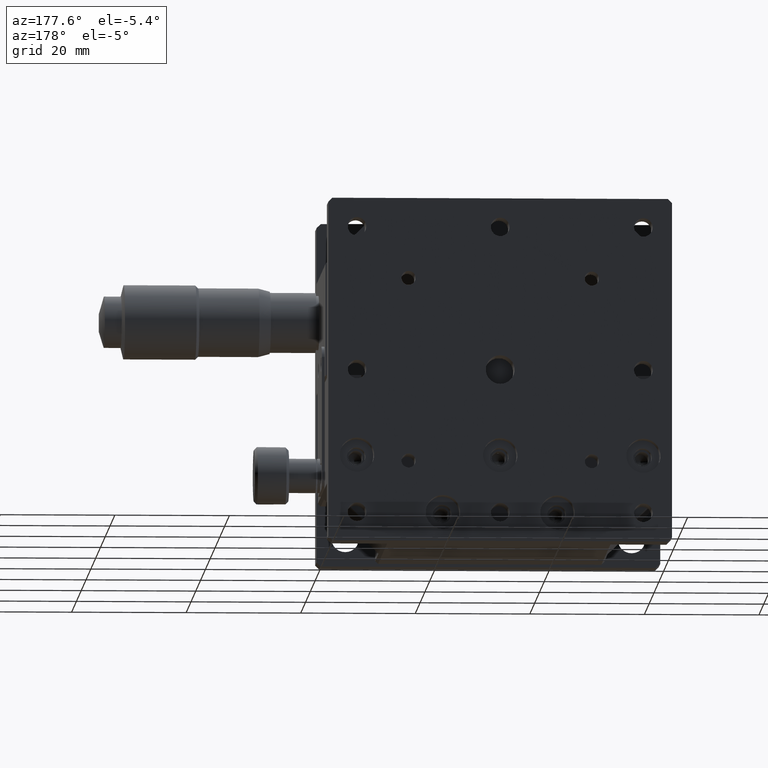
[diagram: clean part render]
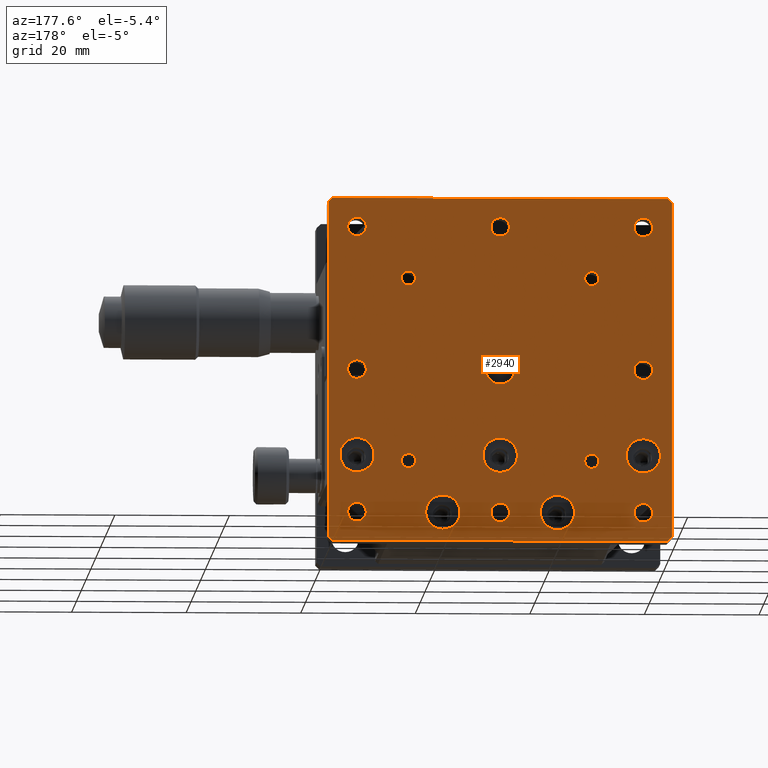
[diagram: same view with one face highlighted and labeled with its STEP entity id]
A machine part, auxiliary view. The second image highlights one B-rep face of the part: STEP entity #2940.
In plain terms, the highlighted planar face has unit normal (0, 1, 0).
Its self-contained STEP definition (entity closure, byte-faithful):
#6 = AXIS2_PLACEMENT_3D ( 'NONE', #10455, #2019, #167 ) ;
#12 = DIRECTION ( 'NONE',  ( 0.000000000000000000, 1.000000000000000000, 0.000000000000000000 ) ) ;
#16 = EDGE_CURVE ( 'NONE', #11284, #8006, #11708, .T. ) ;
#25 = CARTESIAN_POINT ( 'NONE',  ( 14.00000000000000000, 55.00000000000000000, -47.22950000000000159 ) ) ;
#102 = CIRCLE ( 'NONE', #10345, 2.999999999999988898 ) ;
#118 = EDGE_LOOP ( 'NONE', ( #7866 ) ) ;
#124 = FACE_BOUND ( 'NONE', #337, .T. ) ;
#167 = DIRECTION ( 'NONE',  ( 0.000000000000000000, 0.000000000000000000, -1.000000000000000000 ) ) ;
#203 = EDGE_CURVE ( 'NONE', #9044, #9044, #10064, .T. ) ;
#218 = EDGE_CURVE ( 'NONE', #1961, #9308, #6227, .T. ) ;
#241 = ORIENTED_EDGE ( 'NONE', *, *, #1958, .T. ) ;
#321 = VERTEX_POINT ( 'NONE', #8936 ) ;
#337 = EDGE_LOOP ( 'NONE', ( #5784 ) ) ;
#376 = ORIENTED_EDGE ( 'NONE', *, *, #8807, .F. ) ;
#400 = EDGE_LOOP ( 'NONE', ( #4616 ) ) ;
#448 = EDGE_CURVE ( 'NONE', #3392, #3392, #9882, .T. ) ;
#551 = EDGE_LOOP ( 'NONE', ( #8477 ) ) ;
#589 = DIRECTION ( 'NONE',  ( 0.000000000000000000, -1.000000000000000000, 0.000000000000000000 ) ) ;
#630 = DIRECTION ( 'NONE',  ( 0.000000000000000000, -0.000000000000000000, 1.000000000000000000 ) ) ;
#635 = AXIS2_PLACEMENT_3D ( 'NONE', #10947, #8862, #10020 ) ;
#738 = AXIS2_PLACEMENT_3D ( 'NONE', #12003, #11084, #8315 ) ;
#743 = EDGE_CURVE ( 'NONE', #7505, #7505, #2405, .T. ) ;
#748 = CIRCLE ( 'NONE', #1541, 1.229499999999999593 ) ;
#844 = DIRECTION ( 'NONE',  ( 0.000000000000000000, 0.000000000000000000, -1.000000000000000000 ) ) ;
#874 = CARTESIAN_POINT ( 'NONE',  ( 14.00000000000000000, 55.00000000000000000, -15.22949999999999982 ) ) ;
#977 = CARTESIAN_POINT ( 'NONE',  ( 30.00000000000000000, 55.00000000000000000, -56.62099999999999511 ) ) ;
#995 = FACE_BOUND ( 'NONE', #6800, .T. ) ;
#1023 = DIRECTION ( 'NONE',  ( 0.000000000000000000, -1.000000000000000000, 0.000000000000000000 ) ) ;
#1112 = FACE_BOUND ( 'NONE', #1833, .T. ) ;
#1249 = DIRECTION ( 'NONE',  ( 0.7071067811865474617, -0.000000000000000000, 0.7071067811865474617 ) ) ;
#1402 = ORIENTED_EDGE ( 'NONE', *, *, #203, .T. ) ;
#1406 = EDGE_CURVE ( 'NONE', #7323, #7323, #8830, .T. ) ;
#1422 = DIRECTION ( 'NONE',  ( -0.000000000000000000, 0.000000000000000000, -1.000000000000000000 ) ) ;
#1471 = ORIENTED_EDGE ( 'NONE', *, *, #4394, .T. ) ;
#1541 = AXIS2_PLACEMENT_3D ( 'NONE', #10876, #589, #7973 ) ;
#1675 = ORIENTED_EDGE ( 'NONE', *, *, #3279, .F. ) ;
#1679 = CIRCLE ( 'NONE', #10134, 1.229500000000001370 ) ;
#1788 = CARTESIAN_POINT ( 'NONE',  ( 30.00000000000000000, 55.00000000000000000, -48.00000000000000000 ) ) ;
#1795 = DIRECTION ( 'NONE',  ( 0.000000000000000000, 0.000000000000000000, -1.000000000000000000 ) ) ;
#1803 = FACE_BOUND ( 'NONE', #4281, .T. ) ;
#1833 = EDGE_LOOP ( 'NONE', ( #11189 ) ) ;
#1859 = FACE_BOUND ( 'NONE', #11876, .T. ) ;
#1918 = DIRECTION ( 'NONE',  ( 0.000000000000000000, -1.000000000000000000, 0.000000000000000000 ) ) ;
#1941 = ORIENTED_EDGE ( 'NONE', *, *, #4440, .T. ) ;
#1958 = EDGE_CURVE ( 'NONE', #8512, #6271, #7561, .T. ) ;
#1961 = VERTEX_POINT ( 'NONE', #9537 ) ;
#2005 = VECTOR ( 'NONE', #1249, 1000.000000000000114 ) ;
#2019 = DIRECTION ( 'NONE',  ( 0.000000000000000000, -1.000000000000000000, 0.000000000000000000 ) ) ;
#2035 = DIRECTION ( 'NONE',  ( 0.000000000000000000, 0.000000000000000000, -1.000000000000000000 ) ) ;
#2037 = VERTEX_POINT ( 'NONE', #4578 ) ;
#2063 = CARTESIAN_POINT ( 'NONE',  ( 60.00000000000000000, 55.00000000000000711, -59.28999999999999915 ) ) ;
#2091 = EDGE_CURVE ( 'NONE', #3752, #3752, #8926, .T. ) ;
#2119 = VECTOR ( 'NONE', #10666, 1000.000000000000000 ) ;
#2154 = AXIS2_PLACEMENT_3D ( 'NONE', #8329, #11097, #8265 ) ;
#2227 = AXIS2_PLACEMENT_3D ( 'NONE', #2766, #6516, #2327 ) ;
#2246 = EDGE_LOOP ( 'NONE', ( #1941 ) ) ;
#2266 = DIRECTION ( 'NONE',  ( 0.000000000000000000, 0.000000000000000000, -1.000000000000000000 ) ) ;
#2271 = DIRECTION ( 'NONE',  ( 0.000000000000000000, -1.000000000000000000, 0.000000000000000000 ) ) ;
#2292 = LINE ( 'NONE', #6962, #11698 ) ;
#2327 = DIRECTION ( 'NONE',  ( 0.000000000000000000, 0.000000000000000000, -1.000000000000000000 ) ) ;
#2373 = ORIENTED_EDGE ( 'NONE', *, *, #5680, .T. ) ;
#2405 = CIRCLE ( 'NONE', #7122, 1.620999999999997332 ) ;
#2412 = ORIENTED_EDGE ( 'NONE', *, *, #16, .F. ) ;
#2474 = DIRECTION ( 'NONE',  ( 0.000000000000000000, -1.000000000000000000, 0.000000000000000000 ) ) ;
#2506 = CARTESIAN_POINT ( 'NONE',  ( 59.28999999999999915, 55.00000000000000000, 0.000000000000000000 ) ) ;
#2660 = CARTESIAN_POINT ( 'NONE',  ( 40.00000000000000000, 55.00000000000000000, -55.00000000000000000 ) ) ;
#2665 = VECTOR ( 'NONE', #1422, 1000.000000000000000 ) ;
#2766 = CARTESIAN_POINT ( 'NONE',  ( 30.00000000000000000, 55.00000000000000000, -5.000000000000000000 ) ) ;
#2782 = FACE_BOUND ( 'NONE', #400, .T. ) ;
#2900 = FACE_BOUND ( 'NONE', #8839, .T. ) ;
#2927 = DIRECTION ( 'NONE',  ( 0.000000000000000000, 0.000000000000000000, -1.000000000000000000 ) ) ;
#2940 = ADVANCED_FACE ( 'NONE', ( #1112, #9436, #1859, #1803, #2900, #995, #11335, #4881, #6650, #124, #7516, #11273, #11218, #10417, #2782, #8622, #6531, #5565, #4816 ), #2960, .T. ) ;
#2946 = DIRECTION ( 'NONE',  ( 1.000000000000000000, 0.000000000000000000, -0.000000000000000000 ) ) ;
#2958 = CARTESIAN_POINT ( 'NONE',  ( 5.000000000000000000, 55.00000000000000000, -31.62099999999999511 ) ) ;
#2960 = PLANE ( 'NONE',  #6911 ) ;
#2975 = AXIS2_PLACEMENT_3D ( 'NONE', #2660, #1918, #8503 ) ;
#3132 = DIRECTION ( 'NONE',  ( 0.000000000000000000, -1.000000000000000000, 0.000000000000000000 ) ) ;
#3194 = AXIS2_PLACEMENT_3D ( 'NONE', #7752, #9611, #2035 ) ;
#3279 = EDGE_CURVE ( 'NONE', #1961, #9058, #11262, .T. ) ;
#3341 = EDGE_CURVE ( 'NONE', #11784, #11784, #9507, .T. ) ;
#3352 = CARTESIAN_POINT ( 'NONE',  ( 55.00000000000000000, 55.00000000000000000, -55.00000000000000000 ) ) ;
#3386 = CARTESIAN_POINT ( 'NONE',  ( 0.7099999999999999645, 55.00000000000000000, -5.416677968589100837E-32 ) ) ;
#3392 = VERTEX_POINT ( 'NONE', #6150 ) ;
#3422 = ORIENTED_EDGE ( 'NONE', *, *, #10446, .T. ) ;
#3548 = CARTESIAN_POINT ( 'NONE',  ( 20.00000000000000000, 55.00000000000000000, -58.00000000000000000 ) ) ;
#3617 = CARTESIAN_POINT ( 'NONE',  ( 0.7100000000000080691, 55.00000000000000000, -60.00000000000000000 ) ) ;
#3639 = CARTESIAN_POINT ( 'NONE',  ( 46.00000000000000000, 55.00000000000000000, -46.00000000000000000 ) ) ;
#3676 = ORIENTED_EDGE ( 'NONE', *, *, #12129, .T. ) ;
#3752 = VERTEX_POINT ( 'NONE', #5421 ) ;
#3754 = DIRECTION ( 'NONE',  ( 0.7071067811865500152, -0.000000000000000000, -0.7071067811865450192 ) ) ;
#3759 = CARTESIAN_POINT ( 'NONE',  ( 14.00000000000000000, 55.00000000000000000, -46.00000000000000000 ) ) ;
#3886 = DIRECTION ( 'NONE',  ( 0.000000000000000000, -0.000000000000000000, 1.000000000000000000 ) ) ;
#4012 = DIRECTION ( 'NONE',  ( 0.000000000000000000, -1.000000000000000000, 0.000000000000000000 ) ) ;
#4017 = VECTOR ( 'NONE', #2946, 1000.000000000000000 ) ;
#4075 = CARTESIAN_POINT ( 'NONE',  ( 14.00000000000000000, 55.00000000000000000, -14.00000000000000000 ) ) ;
#4110 = EDGE_LOOP ( 'NONE', ( #11481 ) ) ;
#4123 = EDGE_LOOP ( 'NONE', ( #1471 ) ) ;
#4127 = CARTESIAN_POINT ( 'NONE',  ( 30.00000000000000000, 55.00000000000000000, -32.51750000000001251 ) ) ;
#4155 = CARTESIAN_POINT ( 'NONE',  ( 1.355252715606880851E-17, 55.00000000000000000, -0.7100000000000011857 ) ) ;
#4281 = EDGE_LOOP ( 'NONE', ( #4286 ) ) ;
#4283 = CARTESIAN_POINT ( 'NONE',  ( 30.00000000000000000, 55.00000000000000000, -6.621000000000000441 ) ) ;
#4286 = ORIENTED_EDGE ( 'NONE', *, *, #1406, .T. ) ;
#4298 = EDGE_CURVE ( 'NONE', #8512, #9308, #8738, .T. ) ;
#4394 = EDGE_CURVE ( 'NONE', #10067, #10067, #9392, .T. ) ;
#4405 = VERTEX_POINT ( 'NONE', #8150 ) ;
#4440 = EDGE_CURVE ( 'NONE', #11051, #11051, #8411, .T. ) ;
#4505 = DIRECTION ( 'NONE',  ( 0.000000000000000000, 0.000000000000000000, -1.000000000000000000 ) ) ;
#4578 = CARTESIAN_POINT ( 'NONE',  ( 5.000000000000000000, 55.00000000000000000, -6.621000000000000441 ) ) ;
#4616 = ORIENTED_EDGE ( 'NONE', *, *, #10914, .T. ) ;
#4774 = VECTOR ( 'NONE', #630, 1000.000000000000000 ) ;
#4816 = FACE_OUTER_BOUND ( 'NONE', #7914, .T. ) ;
#4875 = AXIS2_PLACEMENT_3D ( 'NONE', #3639, #6400, #4505 ) ;
#4881 = FACE_BOUND ( 'NONE', #9112, .T. ) ;
#4992 = CARTESIAN_POINT ( 'NONE',  ( 5.000000000000000000, 55.00000000000000000, -55.00000000000000000 ) ) ;
#5022 = VERTEX_POINT ( 'NONE', #10212 ) ;
#5306 = EDGE_CURVE ( 'NONE', #10129, #10129, #748, .T. ) ;
#5383 = DIRECTION ( 'NONE',  ( 0.000000000000000000, -1.000000000000000000, 0.000000000000000000 ) ) ;
#5403 = CARTESIAN_POINT ( 'NONE',  ( 5.000000000000000000, 55.00000000000000000, -30.00000000000000000 ) ) ;
#5421 = CARTESIAN_POINT ( 'NONE',  ( 5.000000000000000000, 55.00000000000000000, -56.62099999999999511 ) ) ;
#5449 = CARTESIAN_POINT ( 'NONE',  ( 55.00000000000000000, 55.00000000000000000, -30.00000000000000000 ) ) ;
#5484 = CIRCLE ( 'NONE', #11570, 1.620999999999997332 ) ;
#5565 = FACE_BOUND ( 'NONE', #4110, .T. ) ;
#5577 = VERTEX_POINT ( 'NONE', #9504 ) ;
#5648 = ORIENTED_EDGE ( 'NONE', *, *, #4298, .F. ) ;
#5658 = EDGE_LOOP ( 'NONE', ( #10111 ) ) ;
#5680 = EDGE_CURVE ( 'NONE', #4405, #4405, #5484, .T. ) ;
#5761 = ORIENTED_EDGE ( 'NONE', *, *, #7326, .T. ) ;
#5784 = ORIENTED_EDGE ( 'NONE', *, *, #11684, .T. ) ;
#5978 = CARTESIAN_POINT ( 'NONE',  ( 0.000000000000000000, 55.00000000000000000, -0.7100000000000009637 ) ) ;
#5983 = DIRECTION ( 'NONE',  ( 0.000000000000000000, 0.000000000000000000, -1.000000000000000000 ) ) ;
#6095 = CIRCLE ( 'NONE', #6, 1.620999999999999996 ) ;
#6101 = LINE ( 'NONE', #6218, #2665 ) ;
#6150 = CARTESIAN_POINT ( 'NONE',  ( 55.00000000000000000, 55.00000000000000000, -6.621000000000000441 ) ) ;
#6192 = LINE ( 'NONE', #2506, #10350 ) ;
#6218 = CARTESIAN_POINT ( 'NONE',  ( 60.00000000000000000, 55.00000000000000000, 0.000000000000000000 ) ) ;
#6227 = LINE ( 'NONE', #9059, #4774 ) ;
#6271 = VERTEX_POINT ( 'NONE', #11539 ) ;
#6294 = CIRCLE ( 'NONE', #8267, 1.620999999999997332 ) ;
#6400 = DIRECTION ( 'NONE',  ( 0.000000000000000000, -1.000000000000000000, 0.000000000000000000 ) ) ;
#6516 = DIRECTION ( 'NONE',  ( 0.000000000000000000, -1.000000000000000000, 0.000000000000000000 ) ) ;
#6531 = FACE_BOUND ( 'NONE', #7418, .T. ) ;
#6532 = EDGE_CURVE ( 'NONE', #5577, #5577, #8368, .T. ) ;
#6577 = CARTESIAN_POINT ( 'NONE',  ( 0.7100000000000009637, 55.00000000000000000, -60.00000000000000000 ) ) ;
#6597 = DIRECTION ( 'NONE',  ( 0.000000000000000000, 0.000000000000000000, -1.000000000000000000 ) ) ;
#6650 = FACE_BOUND ( 'NONE', #8103, .T. ) ;
#6652 = VECTOR ( 'NONE', #3754, 1000.000000000000000 ) ;
#6774 = EDGE_CURVE ( 'NONE', #5022, #8006, #6101, .T. ) ;
#6800 = EDGE_LOOP ( 'NONE', ( #3676 ) ) ;
#6845 = CARTESIAN_POINT ( 'NONE',  ( 60.00000000000000000, 55.00000000000000711, -59.28999999999999915 ) ) ;
#6911 = AXIS2_PLACEMENT_3D ( 'NONE', #10295, #12, #3886 ) ;
#6923 = EDGE_CURVE ( 'NONE', #12153, #12153, #1679, .T. ) ;
#6937 = DIRECTION ( 'NONE',  ( -0.7071067811865450192, -0.000000000000000000, 0.7071067811865500152 ) ) ;
#6962 = CARTESIAN_POINT ( 'NONE',  ( 0.000000000000000000, 55.00000000000000000, -60.00000000000000000 ) ) ;
#7105 = ORIENTED_EDGE ( 'NONE', *, *, #5306, .T. ) ;
#7113 = ORIENTED_EDGE ( 'NONE', *, *, #218, .T. ) ;
#7122 = AXIS2_PLACEMENT_3D ( 'NONE', #9644, #1023, #2927 ) ;
#7323 = VERTEX_POINT ( 'NONE', #1788 ) ;
#7326 = EDGE_CURVE ( 'NONE', #321, #321, #102, .T. ) ;
#7418 = EDGE_LOOP ( 'NONE', ( #11548 ) ) ;
#7454 = ORIENTED_EDGE ( 'NONE', *, *, #6923, .T. ) ;
#7504 = AXIS2_PLACEMENT_3D ( 'NONE', #4075, #4012, #5983 ) ;
#7505 = VERTEX_POINT ( 'NONE', #977 ) ;
#7516 = FACE_BOUND ( 'NONE', #5658, .T. ) ;
#7561 = LINE ( 'NONE', #7685, #4017 ) ;
#7645 = DIRECTION ( 'NONE',  ( -1.000000000000000000, -0.000000000000000000, 0.000000000000000000 ) ) ;
#7685 = CARTESIAN_POINT ( 'NONE',  ( 0.000000000000000000, 55.00000000000000000, 1.084202172485499997E-16 ) ) ;
#7752 = CARTESIAN_POINT ( 'NONE',  ( 30.00000000000000000, 55.00000000000000000, -30.00000000000000000 ) ) ;
#7866 = ORIENTED_EDGE ( 'NONE', *, *, #6532, .T. ) ;
#7914 = EDGE_LOOP ( 'NONE', ( #3422, #1675, #7113, #5648, #241, #376, #10692, #2412 ) ) ;
#7973 = DIRECTION ( 'NONE',  ( 0.000000000000000000, 0.000000000000000000, -1.000000000000000000 ) ) ;
#8006 = VERTEX_POINT ( 'NONE', #2063 ) ;
#8074 = DIRECTION ( 'NONE',  ( 0.000000000000000000, 0.000000000000000000, -1.000000000000000000 ) ) ;
#8103 = EDGE_LOOP ( 'NONE', ( #7105 ) ) ;
#8150 = CARTESIAN_POINT ( 'NONE',  ( 55.00000000000000000, 55.00000000000000000, -56.62099999999999511 ) ) ;
#8265 = DIRECTION ( 'NONE',  ( 0.000000000000000000, 0.000000000000000000, -1.000000000000000000 ) ) ;
#8267 = AXIS2_PLACEMENT_3D ( 'NONE', #5403, #11919, #844 ) ;
#8278 = CARTESIAN_POINT ( 'NONE',  ( 46.00000000000000000, 55.00000000000000000, -15.22949999999999982 ) ) ;
#8315 = DIRECTION ( 'NONE',  ( 0.000000000000000000, 0.000000000000000000, -1.000000000000000000 ) ) ;
#8329 = CARTESIAN_POINT ( 'NONE',  ( 30.00000000000000000, 55.00000000000000000, -45.00000000000000000 ) ) ;
#8368 = CIRCLE ( 'NONE', #9936, 1.620999999999997332 ) ;
#8411 = CIRCLE ( 'NONE', #4875, 1.229500000000001370 ) ;
#8477 = ORIENTED_EDGE ( 'NONE', *, *, #743, .T. ) ;
#8503 = DIRECTION ( 'NONE',  ( 0.000000000000000000, 0.000000000000000000, -1.000000000000000000 ) ) ;
#8505 = CARTESIAN_POINT ( 'NONE',  ( 40.00000000000000000, 55.00000000000000000, -58.00000000000000000 ) ) ;
#8512 = VERTEX_POINT ( 'NONE', #3386 ) ;
#8622 = FACE_BOUND ( 'NONE', #11865, .T. ) ;
#8705 = EDGE_LOOP ( 'NONE', ( #2373 ) ) ;
#8738 = LINE ( 'NONE', #5978, #2119 ) ;
#8801 = VERTEX_POINT ( 'NONE', #4127 ) ;
#8807 = EDGE_CURVE ( 'NONE', #5022, #6271, #6192, .T. ) ;
#8830 = CIRCLE ( 'NONE', #2154, 3.000000000000002665 ) ;
#8839 = EDGE_LOOP ( 'NONE', ( #5761 ) ) ;
#8862 = DIRECTION ( 'NONE',  ( 0.000000000000000000, -1.000000000000000000, 0.000000000000000000 ) ) ;
#8926 = CIRCLE ( 'NONE', #9724, 1.620999999999997332 ) ;
#8936 = CARTESIAN_POINT ( 'NONE',  ( 5.000000000000000000, 55.00000000000000000, -47.99999999999998579 ) ) ;
#9044 = VERTEX_POINT ( 'NONE', #10958 ) ;
#9058 = VERTEX_POINT ( 'NONE', #3617 ) ;
#9059 = CARTESIAN_POINT ( 'NONE',  ( 0.000000000000000000, 55.00000000000000000, 0.000000000000000000 ) ) ;
#9112 = EDGE_LOOP ( 'NONE', ( #7454 ) ) ;
#9181 = DIRECTION ( 'NONE',  ( 0.000000000000000000, -1.000000000000000000, 0.000000000000000000 ) ) ;
#9308 = VERTEX_POINT ( 'NONE', #4155 ) ;
#9310 = VERTEX_POINT ( 'NONE', #874 ) ;
#9375 = VERTEX_POINT ( 'NONE', #2958 ) ;
#9392 = CIRCLE ( 'NONE', #738, 3.000000000000002665 ) ;
#9436 = FACE_BOUND ( 'NONE', #4123, .T. ) ;
#9490 = VERTEX_POINT ( 'NONE', #8505 ) ;
#9504 = CARTESIAN_POINT ( 'NONE',  ( 55.00000000000000000, 55.00000000000000000, -31.62099999999999511 ) ) ;
#9507 = CIRCLE ( 'NONE', #2227, 1.620999999999999996 ) ;
#9537 = CARTESIAN_POINT ( 'NONE',  ( 7.047314121155778821E-16, 55.00000000000000000, -59.29000000000000625 ) ) ;
#9611 = DIRECTION ( 'NONE',  ( 0.000000000000000000, -1.000000000000000000, 0.000000000000000000 ) ) ;
#9644 = CARTESIAN_POINT ( 'NONE',  ( 30.00000000000000000, 55.00000000000000000, -55.00000000000000000 ) ) ;
#9724 = AXIS2_PLACEMENT_3D ( 'NONE', #4992, #3132, #2266 ) ;
#9882 = CIRCLE ( 'NONE', #635, 1.620999999999999996 ) ;
#9888 = ORIENTED_EDGE ( 'NONE', *, *, #448, .T. ) ;
#9936 = AXIS2_PLACEMENT_3D ( 'NONE', #5449, #10300, #6597 ) ;
#10007 = CARTESIAN_POINT ( 'NONE',  ( 46.00000000000000000, 55.00000000000000000, -47.22950000000000159 ) ) ;
#10020 = DIRECTION ( 'NONE',  ( 0.000000000000000000, 0.000000000000000000, -1.000000000000000000 ) ) ;
#10029 = DIRECTION ( 'NONE',  ( 0.000000000000000000, 0.000000000000000000, -1.000000000000000000 ) ) ;
#10064 = CIRCLE ( 'NONE', #12037, 3.000000000000002665 ) ;
#10067 = VERTEX_POINT ( 'NONE', #3548 ) ;
#10111 = ORIENTED_EDGE ( 'NONE', *, *, #2091, .T. ) ;
#10129 = VERTEX_POINT ( 'NONE', #8278 ) ;
#10134 = AXIS2_PLACEMENT_3D ( 'NONE', #3759, #9181, #1795 ) ;
#10212 = CARTESIAN_POINT ( 'NONE',  ( 60.00000000000000000, 55.00000000000000000, -0.7100000000000001865 ) ) ;
#10295 = CARTESIAN_POINT ( 'NONE',  ( 0.000000000000000000, 55.00000000000000000, 0.000000000000000000 ) ) ;
#10300 = DIRECTION ( 'NONE',  ( 0.000000000000000000, -1.000000000000000000, 0.000000000000000000 ) ) ;
#10345 = AXIS2_PLACEMENT_3D ( 'NONE', #10889, #2271, #10029 ) ;
#10350 = VECTOR ( 'NONE', #6937, 1000.000000000000000 ) ;
#10417 = FACE_BOUND ( 'NONE', #118, .T. ) ;
#10446 = EDGE_CURVE ( 'NONE', #11284, #9058, #2292, .T. ) ;
#10455 = CARTESIAN_POINT ( 'NONE',  ( 5.000000000000000000, 55.00000000000000000, -5.000000000000000000 ) ) ;
#10666 = DIRECTION ( 'NONE',  ( -0.7071067811865470176, -0.000000000000000000, -0.7071067811865480168 ) ) ;
#10692 = ORIENTED_EDGE ( 'NONE', *, *, #6774, .T. ) ;
#10749 = CARTESIAN_POINT ( 'NONE',  ( 59.28999999999999915, 55.00000000000000711, -60.00000000000000000 ) ) ;
#10766 = EDGE_CURVE ( 'NONE', #2037, #2037, #6095, .T. ) ;
#10876 = CARTESIAN_POINT ( 'NONE',  ( 46.00000000000000000, 55.00000000000000000, -14.00000000000000000 ) ) ;
#10889 = CARTESIAN_POINT ( 'NONE',  ( 5.000000000000000000, 55.00000000000000000, -45.00000000000000000 ) ) ;
#10914 = EDGE_CURVE ( 'NONE', #9375, #9375, #6294, .T. ) ;
#10915 = DIRECTION ( 'NONE',  ( 0.000000000000000000, 0.000000000000000000, -1.000000000000000000 ) ) ;
#10947 = CARTESIAN_POINT ( 'NONE',  ( 55.00000000000000000, 55.00000000000000000, -5.000000000000000000 ) ) ;
#10958 = CARTESIAN_POINT ( 'NONE',  ( 55.00000000000000000, 55.00000000000000000, -48.00000000000000000 ) ) ;
#11051 = VERTEX_POINT ( 'NONE', #10007 ) ;
#11084 = DIRECTION ( 'NONE',  ( 0.000000000000000000, -1.000000000000000000, 0.000000000000000000 ) ) ;
#11097 = DIRECTION ( 'NONE',  ( 0.000000000000000000, -1.000000000000000000, 0.000000000000000000 ) ) ;
#11189 = ORIENTED_EDGE ( 'NONE', *, *, #11938, .T. ) ;
#11218 = FACE_BOUND ( 'NONE', #8705, .T. ) ;
#11234 = CIRCLE ( 'NONE', #7504, 1.229499999999999593 ) ;
#11241 = CIRCLE ( 'NONE', #2975, 3.000000000000002665 ) ;
#11262 = LINE ( 'NONE', #6577, #6652 ) ;
#11273 = FACE_BOUND ( 'NONE', #551, .T. ) ;
#11284 = VERTEX_POINT ( 'NONE', #10749 ) ;
#11335 = FACE_BOUND ( 'NONE', #2246, .T. ) ;
#11439 = CIRCLE ( 'NONE', #3194, 2.517500000000012950 ) ;
#11481 = ORIENTED_EDGE ( 'NONE', *, *, #10766, .T. ) ;
#11539 = CARTESIAN_POINT ( 'NONE',  ( 59.28999999999999915, 55.00000000000000000, 0.000000000000000000 ) ) ;
#11548 = ORIENTED_EDGE ( 'NONE', *, *, #3341, .T. ) ;
#11570 = AXIS2_PLACEMENT_3D ( 'NONE', #3352, #5383, #10915 ) ;
#11684 = EDGE_CURVE ( 'NONE', #9310, #9310, #11234, .T. ) ;
#11698 = VECTOR ( 'NONE', #7645, 1000.000000000000000 ) ;
#11708 = LINE ( 'NONE', #6845, #2005 ) ;
#11784 = VERTEX_POINT ( 'NONE', #4283 ) ;
#11865 = EDGE_LOOP ( 'NONE', ( #9888 ) ) ;
#11876 = EDGE_LOOP ( 'NONE', ( #1402 ) ) ;
#11919 = DIRECTION ( 'NONE',  ( 0.000000000000000000, -1.000000000000000000, 0.000000000000000000 ) ) ;
#11938 = EDGE_CURVE ( 'NONE', #9490, #9490, #11241, .T. ) ;
#11950 = CARTESIAN_POINT ( 'NONE',  ( 55.00000000000000000, 55.00000000000000000, -45.00000000000000000 ) ) ;
#12003 = CARTESIAN_POINT ( 'NONE',  ( 20.00000000000000000, 55.00000000000000000, -55.00000000000000000 ) ) ;
#12037 = AXIS2_PLACEMENT_3D ( 'NONE', #11950, #2474, #8074 ) ;
#12129 = EDGE_CURVE ( 'NONE', #8801, #8801, #11439, .T. ) ;
#12153 = VERTEX_POINT ( 'NONE', #25 ) ;